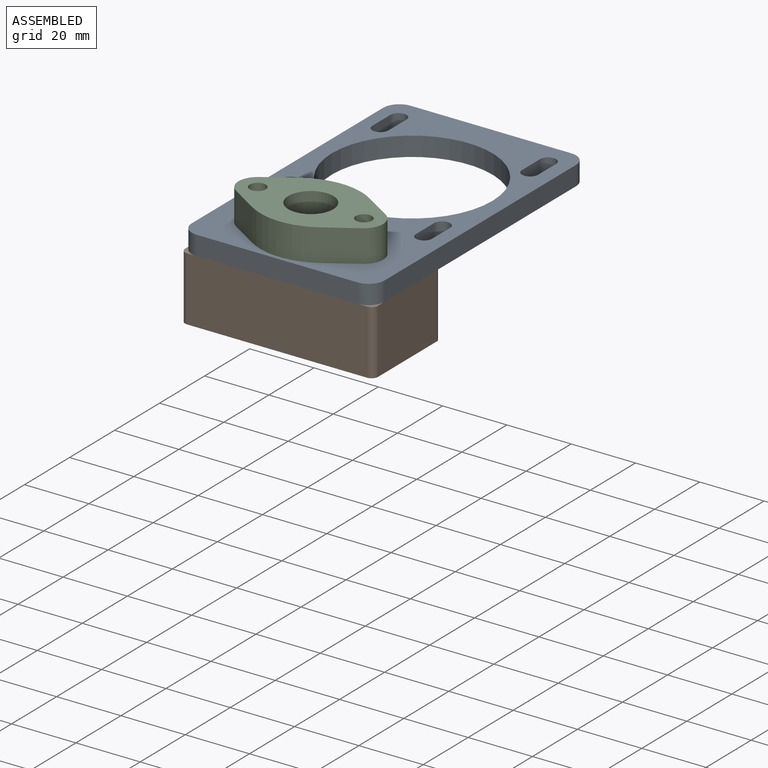
[diagram: assembled view]
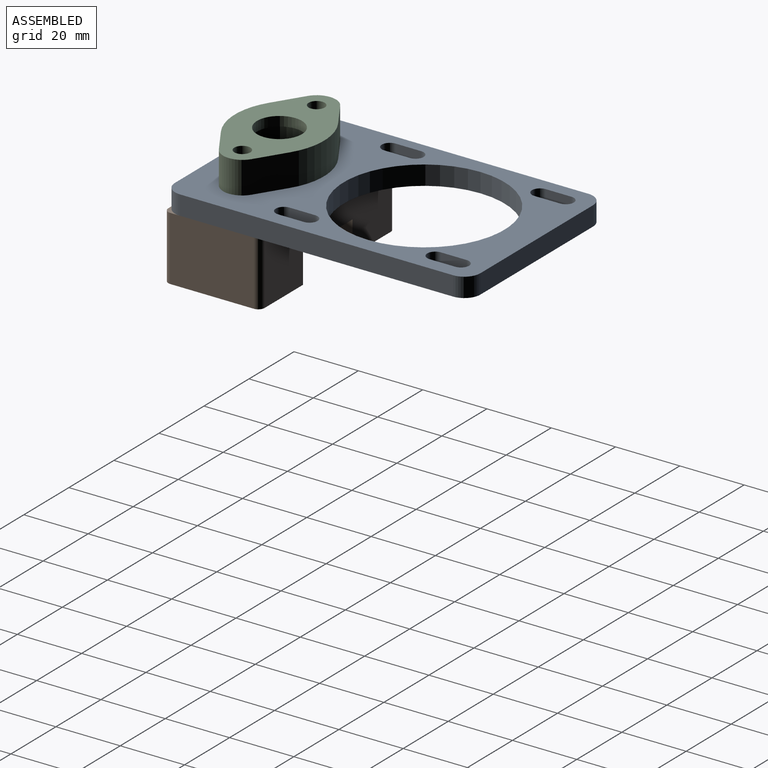
[diagram: assembled view, second angle]
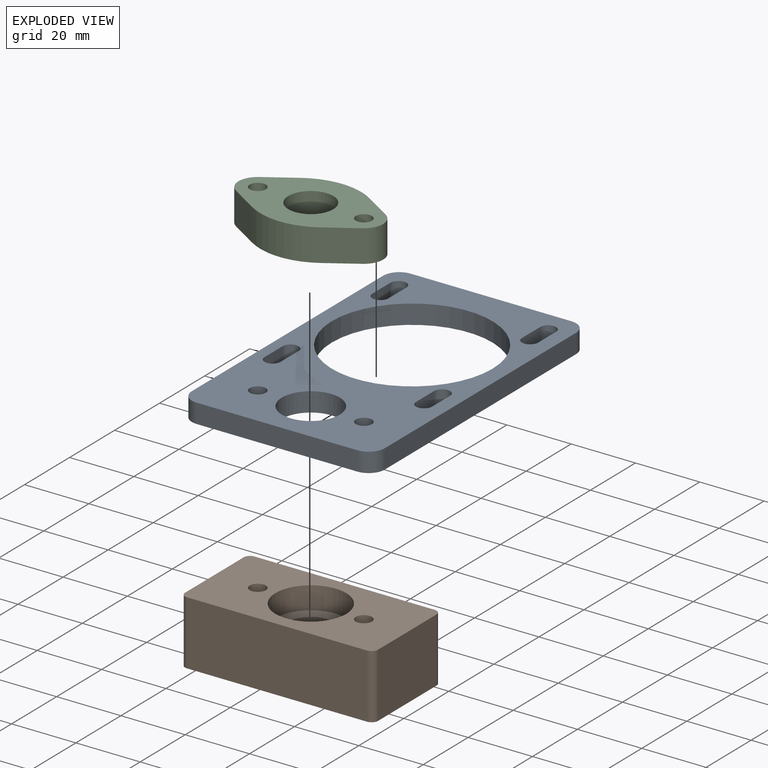
[diagram: exploded view]
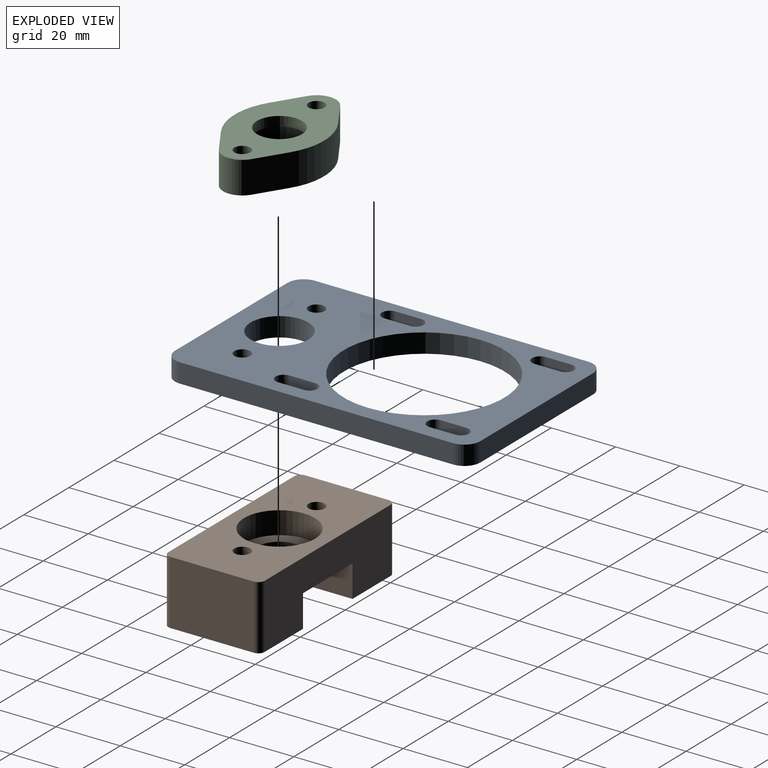
[diagram: exploded view, second angle]
ASSEMBLY  parts=3 mates=2
PART A: 30 faces, bbox 60x95x6 mm
  f0: plane 8x6mm, normal (1,0,0), area 48mm2, adj f1,f23,f24,f25
  f1: cylinder r=2.5mm len=6mm, axis (0,0,-1), area 47.1mm2, adj f0,f2,f24,f25
  f2: plane 8x6mm, normal (-1,0,0), area 48mm2, adj f1,f23,f24,f25
  f3: plane 85x6mm, normal (1,0,0), area 510mm2, adj f24,f25,f26,f29
  f4: plane 50x6mm, normal (0,1,0), area 300mm2, adj f24,f25,f26,f27
  f5: plane 85x6mm, normal (-1,0,0), area 510mm2, adj f24,f25,f27,f28
  f6: plane 8x6mm, normal (-1,0,0), area 48mm2, adj f7,f20,f24,f25
  f7: cylinder r=2.5mm len=6mm, axis (0,0,-1), area 47.1mm2, adj f6,f8,f24,f25
  f8: plane 8x6mm, normal (1,0,0), area 48mm2, adj f7,f20,f24,f25
  f9: plane 8x6mm, normal (-1,0,0), area 48mm2, adj f10,f21,f24,f25
  f10: cylinder r=2.5mm len=6mm, axis (0,0,-1), area 47.1mm2, adj f9,f11,f24,f25
  f11: plane 8x6mm, normal (1,0,0), area 48mm2, adj f10,f21,f24,f25
  f12: plane 8x6mm, normal (1,0,0), area 48mm2, adj f13,f22,f24,f25
  f13: cylinder r=2.5mm len=6mm, axis (0,0,-1), area 47.1mm2, adj f12,f14,f24,f25
  f14: plane 8x6mm, normal (-1,0,0), area 48mm2, adj f13,f22,f24,f25
  f15: plane 50x6mm, normal (0,-1,0), area 300mm2, adj f24,f25,f28,f29
  f16: cylinder r=25mm len=50mm, axis (0,0,-1), area 942.5mm2, adj f24,f25
  f17: cylinder r=2.5mm len=6mm, axis (0,0,-1), area 94.2mm2, adj f24,f25
  f18: cylinder r=2.5mm len=6mm, axis (0,0,-1), area 94.2mm2, adj f24,f25
  f19: cylinder r=9mm len=18mm, axis (0,0,-1), area 339.3mm2, adj f24,f25
  f20: cylinder r=2.5mm len=6mm, axis (0,0,-1), area 47.1mm2, adj f6,f8,f24,f25
  f21: cylinder r=2.5mm len=6mm, axis (0,0,-1), area 47.1mm2, adj f9,f11,f24,f25
  f22: cylinder r=2.5mm len=6mm, axis (0,0,-1), area 47.1mm2, adj f12,f14,f24,f25
  f23: cylinder r=2.5mm len=6mm, axis (0,0,-1), area 47.1mm2, adj f0,f2,f24,f25
  f24: plane 95x60mm, normal (0,0,1), area 3182.8mm2, adj f0,f1,f2,f3,f4,f5,f6,f7
  f25: plane 95x60mm, normal (0,0,-1), area 3182.8mm2, adj f0,f1,f2,f3,f4,f5,f6,f7
  f26: cylinder r=5mm len=6mm, axis (0,0,1), area 47.1mm2, adj f3,f4,f24,f25
  f27: cylinder r=5mm len=6mm, axis (0,0,-1), area 47.1mm2, adj f4,f5,f24,f25
  f28: cylinder r=5mm len=6mm, axis (0,0,1), area 47.1mm2, adj f5,f15,f24,f25
  f29: cylinder r=5mm len=6mm, axis (0,0,-1), area 47.1mm2, adj f3,f15,f24,f25
PART B: 19 faces, bbox 60x30x20 mm
  f0: cylinder r=11mm len=22mm, axis (0,0,-1), area 483.8mm2, adj f9,f18
  f1: plane 56x20mm, normal (0,1,0), area 900mm2, adj f8,f9,f12,f13,f14,f15,f16
  f2: cylinder r=11mm len=22mm, axis (0,0,-1), area 345.6mm2, adj f8,f14,f15,f16
  f3: plane 26x20mm, normal (-1,0,0), area 520mm2, adj f8,f9,f10,f13
  f4: plane 56x20mm, normal (0,-1,0), area 1120mm2, adj f8,f9,f10,f11
  f5: plane 26x20mm, normal (1,0,0), area 520mm2, adj f8,f9,f11,f12
  f6: cylinder r=2.5mm len=20mm, axis (0,0,-1), area 314.2mm2, adj f8,f9
  f7: cylinder r=2.5mm len=20mm, axis (0,0,-1), area 314.2mm2, adj f8,f9
  f8: plane 60x30mm, normal (0,0,1), area 1237.2mm2, adj f1,f2,f3,f4,f5,f6,f7,f10
  f9: plane 60x30mm, normal (0,0,-1), area 1377.2mm2, adj f0,f1,f3,f4,f5,f6,f7,f10
  f10: cylinder r=2mm len=20mm, axis (0,0,1), area 62.8mm2, adj f3,f4,f8,f9
  f11: cylinder r=2mm len=20mm, axis (0,0,-1), area 62.8mm2, adj f4,f5,f8,f9
  f12: cylinder r=2mm len=20mm, axis (0,0,1), area 62.8mm2, adj f1,f5,f8,f9
  f13: cylinder r=2mm len=20mm, axis (0,0,-1), area 62.8mm2, adj f1,f3,f8,f9
  f14: plane 15x10mm, normal (1,0,0), area 150mm2, adj f1,f2,f8,f16
  f15: plane 15x10mm, normal (-1,0,0), area 150mm2, adj f1,f2,f8,f16
  f16: plane 26x22mm, normal (0,0,1), area 366.1mm2, adj f1,f2,f14,f15,f17
  f17: cylinder r=7mm len=14mm, axis (0,0,1), area 131.9mm2, adj f16,f18
  f18: plane 22x22mm, normal (0,0,-1), area 226.2mm2, adj f0,f17
PART C: 15 faces, bbox 45x27.7x10 mm
  f0: plane 10x9.03mm, normal (0.53,0.85,0), area 106.8mm2, adj f1,f10,f11,f12
  f1: cylinder r=20mm len=21.34mm, axis (0,0,-1), area 225.1mm2, adj f0,f2,f11,f12
  f2: plane 10x9.03mm, normal (-0.53,0.85,0), area 106.8mm2, adj f1,f3,f11,f12
  f3: cylinder r=6mm len=10.15mm, axis (0,0,-1), area 121mm2, adj f2,f4,f11,f12
  f4: plane 10x9.03mm, normal (-0.53,-0.85,0), area 106.8mm2, adj f3,f5,f11,f12
  f5: cylinder r=20mm len=21.34mm, axis (0,0,-1), area 225.1mm2, adj f4,f6,f11,f12
  f6: plane 10x9.03mm, normal (0.53,-0.85,0), area 106.8mm2, adj f5,f10,f11,f12
  f7: cylinder r=2.5mm len=10mm, axis (0,0,-1), area 157.1mm2, adj f11,f12
  f8: cylinder r=2.5mm len=10mm, axis (0,0,-1), area 157.1mm2, adj f11,f12
  f9: cylinder r=11mm len=22mm, axis (0,0,-1), area 483.8mm2, adj f11,f14
  f10: cylinder r=6mm len=10.15mm, axis (0,0,-1), area 121mm2, adj f0,f6,f11,f12
  f11: plane 45x27.71mm, normal (0,0,1), area 455.8mm2, adj f0,f1,f2,f3,f4,f5,f6,f7
  f12: plane 45x27.71mm, normal (0,0,-1), area 682mm2, adj f0,f1,f2,f3,f4,f5,f6,f7
  f13: cylinder r=7mm len=14mm, axis (0,0,-1), area 131.9mm2, adj f12,f14
  f14: plane 22x22mm, normal (0,0,1), area 226.2mm2, adj f9,f13
PLACE A t=(7.65,49.89,97.76)mm
PLACE B rot(axis=(0,1,0),180deg) t=(108.45,46.53,97.76)mm
PLACE C rot(axis=(0,1,0),180deg) t=(108.49,-12.61,113.76)mm
MATE fastened B.f7 <-> A.f17  axis (0,0,1) through (-8.85,4.89,97.76)mm
MATE fastened A.f18 <-> C.f3  axis (0,0,1) through (24.15,4.89,103.76)mm
